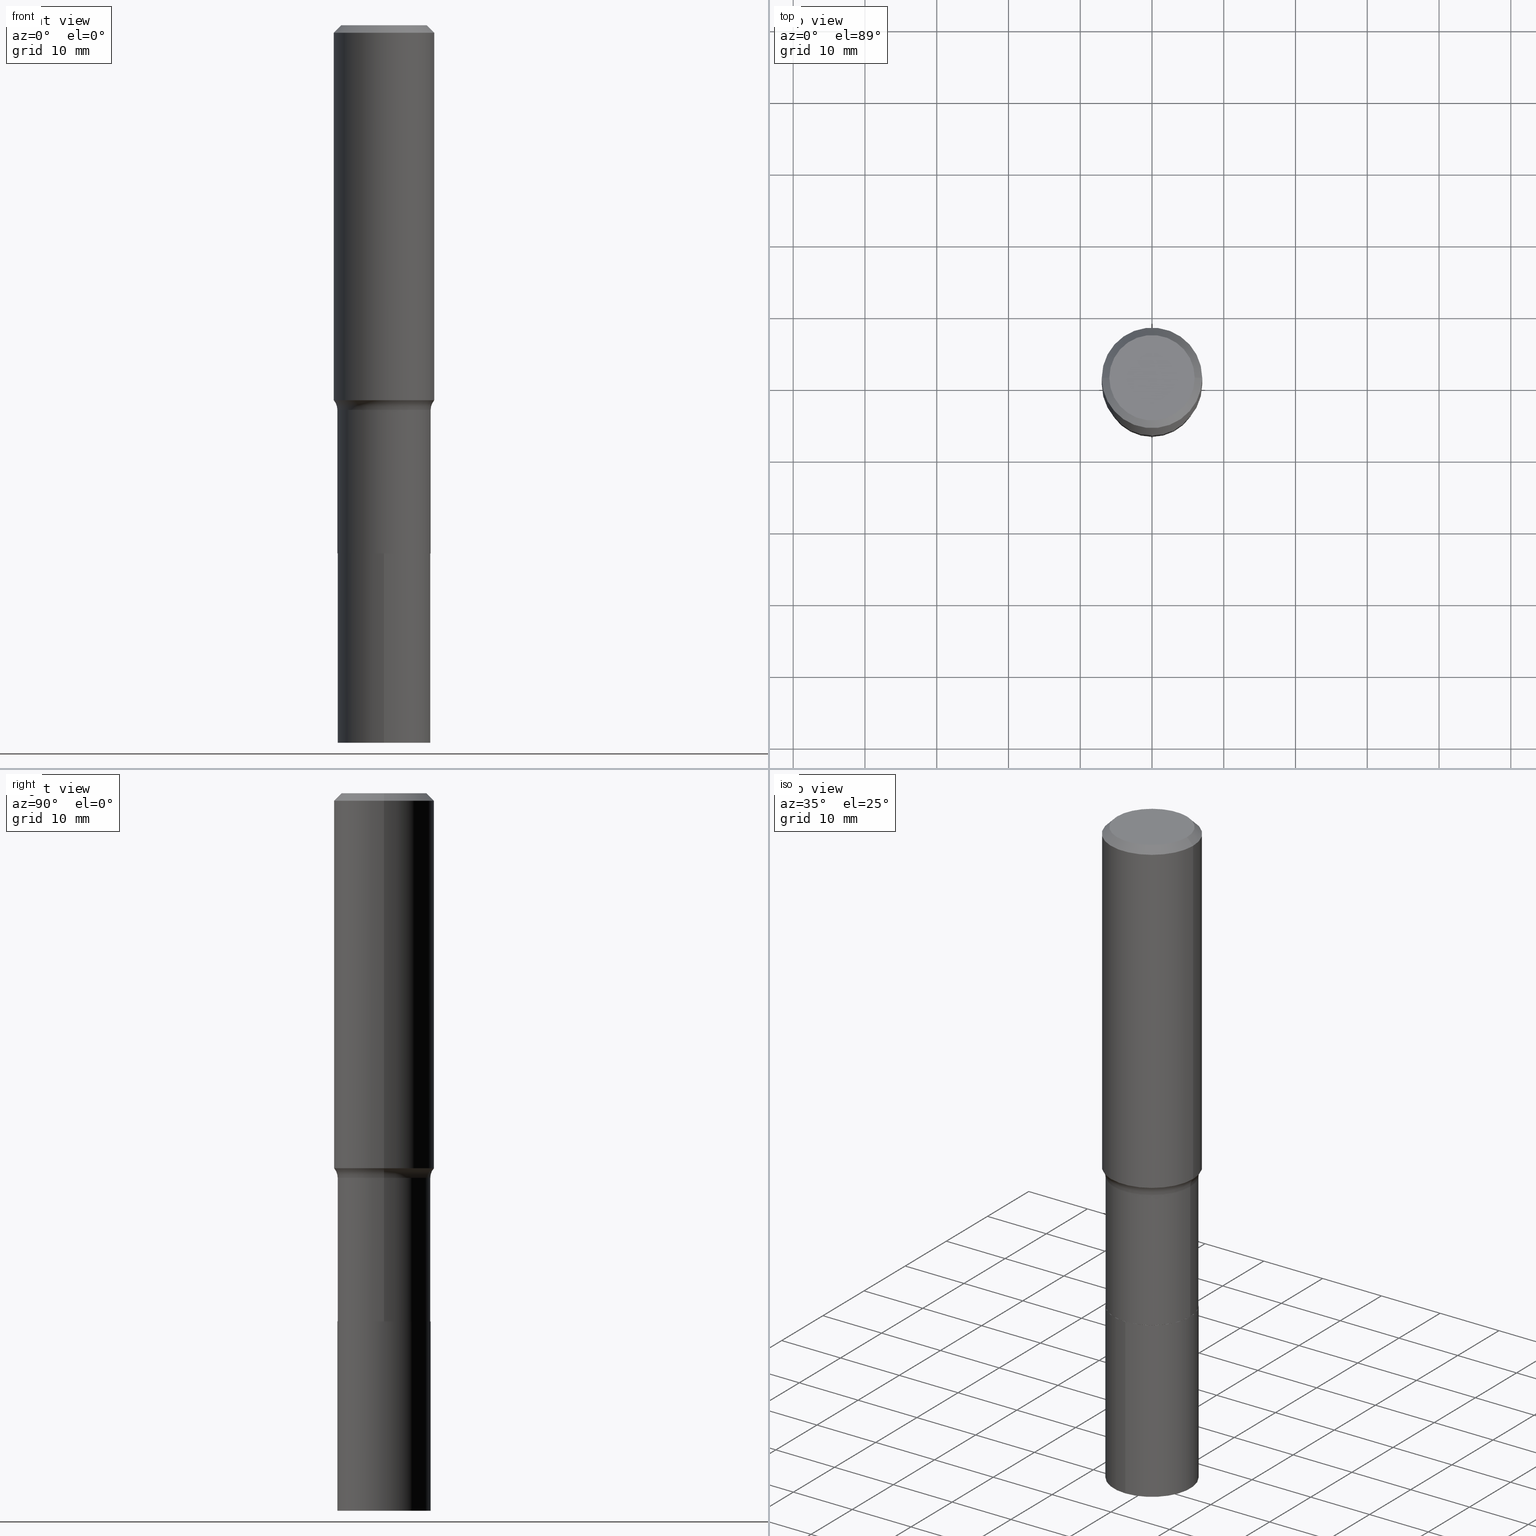
[diagram: canonical four-view strip — front | top / right | iso, engineering-drawing reading convention]
A machine part, canonical four-view strip (front | top / right | iso — engineering-drawing reading convention). The complete STEP part file that produces these views, byte-faithful:
ISO-10303-21;
HEADER;
FILE_DESCRIPTION (( 'STEP AP203' ),
    '1' );
FILE_NAME ('67170.STEP',
    '2024-04-19T16:07:38',
    ( '' ),
    ( '' ),
    'SwSTEP 2.0',
    'SolidWorks 2023',
    '' );
FILE_SCHEMA (( 'CONFIG_CONTROL_DESIGN' ));
ENDSEC;

DATA;
#1 = ORIENTED_EDGE ( 'NONE', *, *, #461, .F. ) ;
#2 = ORIENTED_EDGE ( 'NONE', *, *, #424, .T. ) ;
#3 = VERTEX_POINT ( 'NONE', #457 ) ;
#4 = VECTOR ( 'NONE', #52, 39.37007874015748143 ) ;
#5 = CIRCLE ( 'NONE', #159, 0.2559000000000000163 ) ;
#6 = DIRECTION ( 'NONE',  ( -2.445932488875048180E-29, 3.490817318840012660E-15, 1.000000000000000000 ) ) ;
#7 = ORIENTED_EDGE ( 'NONE', *, *, #109, .T. ) ;
#8 = DIRECTION ( 'NONE',  ( 1.000000000000000000, -6.982962677686266711E-15, 4.876176775795935232E-29 ) ) ;
#9 = ADVANCED_FACE ( 'NONE', ( #175 ), #105, .F. ) ;
#10 = DIRECTION ( 'NONE',  ( -1.000000000000000000, 6.982962677686265922E-15, -4.876176775795935793E-29 ) ) ;
#11 = ORIENTED_EDGE ( 'NONE', *, *, #394, .F. ) ;
#12 = DIRECTION ( 'NONE',  ( -2.445468806185136877E-29, 3.491481338843145188E-15, 1.000000000000000000 ) ) ;
#13 = CARTESIAN_POINT ( 'NONE',  ( 7.086968600324527615E-29, -1.011831291996743858E-14, -2.898000000000000576 ) ) ;
#14 = CARTESIAN_POINT ( 'NONE',  ( -0.2756000000000000116, -1.705996447411659768E-15, -0.04134000000000027930 ) ) ;
#15 = DIRECTION ( 'NONE',  ( -2.438088387897960049E-29, 3.491481338843145188E-15, 1.000000000000000000 ) ) ;
#16 = VERTEX_POINT ( 'NONE', #28 ) ;
#17 = APPROVAL_ROLE ( '' ) ;
#18 = CARTESIAN_POINT ( 'NONE',  ( -0.2559000000000000719, -6.923866689452313634E-15, -2.897499999999999964 ) ) ;
#19 = FACE_OUTER_BOUND ( 'NONE', #454, .T. ) ;
#20 = CALENDAR_DATE ( 2024, 19, 4 ) ;
#21 = DIRECTION ( 'NONE',  ( 1.000000000000000000, -6.982962677686262766E-15, 0.000000000000000000 ) ) ;
#22 = AXIS2_PLACEMENT_3D ( 'NONE', #336, #15, #161 ) ;
#23 = APPLICATION_PROTOCOL_DEFINITION ( 'international standard', 'config_control_design', 1994, #234 ) ;
#24 = DIRECTION ( 'NONE',  ( 1.000000000000000000, -6.982962677686267499E-15, 0.000000000000000000 ) ) ;
#25 = CC_DESIGN_APPROVAL ( #153, ( #237 ) ) ;
#26 = CARTESIAN_POINT ( 'NONE',  ( 0.000000000000000000, 0.000000000000000000, 0.000000000000000000 ) ) ;
#27 = ORIENTED_EDGE ( 'NONE', *, *, #464, .T. ) ;
#28 = CARTESIAN_POINT ( 'NONE',  ( 0.2559000000000000719, -1.190350732851793045E-14, -2.897499999999999964 ) ) ;
#29 = EDGE_CURVE ( 'NONE', #298, #326, #403, .T. ) ;
#30 = CALENDAR_DATE ( 2024, 19, 4 ) ;
#31 = CIRCLE ( 'NONE', #224, 0.2559000000000000719 ) ;
#32 = EDGE_CURVE ( 'NONE', #217, #368, #142, .T. ) ;
#33 = DIRECTION ( 'NONE',  ( -2.445468806185136597E-29, 3.491481338843145583E-15, 1.000000000000000000 ) ) ;
#34 = CC_DESIGN_PERSON_AND_ORGANIZATION_ASSIGNMENT ( #167, #133, ( #404 ) ) ;
#35 = ORIENTED_EDGE ( 'NONE', *, *, #92, .F. ) ;
#36 = APPROVAL_DATE_TIME ( #392, #465 ) ;
#37 = CIRCLE ( 'NONE', #320, 0.2554000000000000159 ) ;
#38 = AXIS2_PLACEMENT_3D ( 'NONE', #262, #42, #124 ) ;
#39 = DIRECTION ( 'NONE',  ( -2.445468806185136877E-29, 3.491481338843145188E-15, 1.000000000000000000 ) ) ;
#40 = ORIENTED_EDGE ( 'NONE', *, *, #290, .F. ) ;
#41 = EDGE_LOOP ( 'NONE', ( #56, #291, #27, #205 ) ) ;
#42 = DIRECTION ( 'NONE',  ( 2.445932488875047619E-29, -3.490817318840012660E-15, -1.000000000000000000 ) ) ;
#43 = ORIENTED_EDGE ( 'NONE', *, *, #199, .F. ) ;
#44 = APPROVAL_PERSON_ORGANIZATION ( #315, #153, #17 ) ;
#45 = ADVANCED_FACE ( 'NONE', ( #444 ), #297, .T. ) ;
#46 = DIRECTION ( 'NONE',  ( -2.445468806185136877E-29, 3.491481338843145188E-15, 1.000000000000000000 ) ) ;
#47 = CARTESIAN_POINT ( 'NONE',  ( -1.786940149219819499E-15, -0.2559000000000137831, -3.936999999999999389 ) ) ;
#48 = CARTESIAN_POINT ( 'NONE',  ( 7.086968600324526494E-29, -1.011831291996743700E-14, -2.898000000000000131 ) ) ;
#49 = CIRCLE ( 'NONE', #346, 0.2554000000000000159 ) ;
#50 = APPROVAL_STATUS ( 'not_yet_approved' ) ;
#51 = DIRECTION ( 'NONE',  ( 1.000000000000000000, -6.982962677686262766E-15, 0.000000000000000000 ) ) ;
#52 = DIRECTION ( 'NONE',  ( -2.445468806185136877E-29, 3.491481338843145188E-15, 1.000000000000000000 ) ) ;
#53 = ORIENTED_EDGE ( 'NONE', *, *, #286, .T. ) ;
#54 = PERSON_AND_ORGANIZATION_ROLE ( 'creator' ) ;
#55 = DIRECTION ( 'NONE',  ( 7.105427357601001859E-15, 1.000000000000000000, -3.491481338843145583E-15 ) ) ;
#56 = ORIENTED_EDGE ( 'NONE', *, *, #412, .F. ) ;
#57 = ADVANCED_FACE ( 'NONE', ( #86 ), #186, .T. ) ;
#58 = PERSON_AND_ORGANIZATION ( #442, #249 ) ;
#59 = LINE ( 'NONE', #456, #254 ) ;
#60 = CLOSED_SHELL ( 'NONE', ( #163, #314, #45, #173, #247, #206, #261, #74, #57, #71, #168, #296 ) ) ;
#61 = DIRECTION ( 'NONE',  ( 1.000000000000000000, -6.982962677686266711E-15, 0.000000000000000000 ) ) ;
#62 = CIRCLE ( 'NONE', #107, 0.2756000000000002892 ) ;
#63 = PERSON_AND_ORGANIZATION_ROLE ( 'design_supplier' ) ;
#64 = CARTESIAN_POINT ( 'NONE',  ( 5.031862883494752694E-29, -7.184166615785218698E-15, -2.057627098234926510 ) ) ;
#65 = CC_DESIGN_PERSON_AND_ORGANIZATION_ASSIGNMENT ( #279, #54, ( #146 ) ) ;
#66 = EDGE_LOOP ( 'NONE', ( #257, #417, #53, #1 ) ) ;
#67 = CALENDAR_DATE ( 2024, 19, 4 ) ;
#68 = ORIENTED_EDGE ( 'NONE', *, *, #384, .T. ) ;
#69 = AXIS2_PLACEMENT_3D ( 'NONE', #82, #259, #8 ) ;
#70 = CC_DESIGN_APPROVAL ( #465, ( #404 ) ) ;
#71 = ADVANCED_FACE ( 'NONE', ( #202 ), #401, .F. ) ;
#72 = ORIENTED_EDGE ( 'NONE', *, *, #424, .F. ) ;
#73 = FACE_OUTER_BOUND ( 'NONE', #308, .T. ) ;
#74 = ADVANCED_FACE ( 'NONE', ( #232 ), #187, .T. ) ;
#75 = FACE_OUTER_BOUND ( 'NONE', #273, .T. ) ;
#76 = LINE ( 'NONE', #269, #4 ) ;
#77 = AXIS2_PLACEMENT_3D ( 'NONE', #333, #81, #266 ) ;
#78 = LOCAL_TIME ( 12, 7, 38.00000000000000000, #140 ) ;
#79 = CC_DESIGN_DATE_AND_TIME_ASSIGNMENT ( #176, #245, ( #404 ) ) ;
#80 = FACE_OUTER_BOUND ( 'NONE', #148, .T. ) ;
#81 = DIRECTION ( 'NONE',  ( -2.445468806185136597E-29, 3.491481338843145583E-15, 1.000000000000000000 ) ) ;
#82 = CARTESIAN_POINT ( 'NONE',  ( 0.000000000000000000, 0.000000000000000000, 0.000000000000000000 ) ) ;
#83 = DIRECTION ( 'NONE',  ( 1.000000000000000000, -6.982962677686262766E-15, 0.000000000000000000 ) ) ;
#84 = CARTESIAN_POINT ( 'NONE',  ( 0.000000000000000000, 0.000000000000000000, 0.000000000000000000 ) ) ;
#85 = DIRECTION ( 'NONE',  ( -1.000000000000000000, 6.982962677686267499E-15, 0.000000000000000000 ) ) ;
#86 = FACE_OUTER_BOUND ( 'NONE', #396, .T. ) ;
#87 = ORIENTED_EDGE ( 'NONE', *, *, #118, .T. ) ;
#88 = VECTOR ( 'NONE', #12, 39.37007874015748143 ) ;
#89 = DATE_AND_TIME ( #20, #78 ) ;
#90 = CARTESIAN_POINT ( 'NONE',  ( 7.085745865921433693E-29, -1.011656717929801471E-14, -2.897499999999999964 ) ) ;
#91 = CARTESIAN_POINT ( 'NONE',  ( 0.000000000000000000, 0.000000000000000000, 0.000000000000000000 ) ) ;
#92 = EDGE_CURVE ( 'NONE', #402, #203, #409, .T. ) ;
#93 = UNCERTAINTY_MEASURE_WITH_UNIT (LENGTH_MEASURE( 1.000000000000000082E-05 ), #418, 'distance_accuracy_value', 'NONE');
#94 = VERTEX_POINT ( 'NONE', #227 ) ;
#95 = CARTESIAN_POINT ( 'NONE',  ( 5.160428274811875519E-29, -7.367723921226805540E-15, -2.110199999999999854 ) ) ;
#96 = CARTESIAN_POINT ( 'NONE',  ( 3.758036747716897919E-29, -2.215181240308971030E-14, -3.937000000000000277 ) ) ;
#97 = EDGE_CURVE ( 'NONE', #432, #3, #438, .T. ) ;
#98 = APPROVAL_ROLE ( '' ) ;
#99 = DESIGN_CONTEXT ( 'detailed design', #234, 'design' ) ;
#100 = ORIENTED_EDGE ( 'NONE', *, *, #97, .T. ) ;
#101 = LENGTH_MEASURE_WITH_UNIT ( LENGTH_MEASURE( 0.02539999999999999897 ), #258 );
#102 = DIRECTION ( 'NONE',  ( -6.982962677686266711E-15, -1.000000000000000000, 4.270180529369696392E-15 ) ) ;
#103 = AXIS2_PLACEMENT_3D ( 'NONE', #134, #421, #102 ) ;
#104 = DIRECTION ( 'NONE',  ( -6.982962677686266711E-15, -1.000000000000000000, 3.491481338843145583E-15 ) ) ;
#105 = PLANE ( 'NONE',  #390 ) ;
#106 = AXIS2_PLACEMENT_3D ( 'NONE', #264, #123, #83 ) ;
#107 = AXIS2_PLACEMENT_3D ( 'NONE', #388, #354, #415 ) ;
#108 = PRODUCT_DEFINITION_SHAPE ( 'NONE', 'NONE',  #237 ) ;
#109 = EDGE_CURVE ( 'NONE', #326, #191, #76, .T. ) ;
#110 = ORIENTED_EDGE ( 'NONE', *, *, #290, .T. ) ;
#111 = ORIENTED_EDGE ( 'NONE', *, *, #464, .F. ) ;
#112 = VECTOR ( 'NONE', #177, 39.37007874015748143 ) ;
#113 =( GEOMETRIC_REPRESENTATION_CONTEXT ( 3 ) GLOBAL_UNCERTAINTY_ASSIGNED_CONTEXT ( ( #93 ) ) GLOBAL_UNIT_ASSIGNED_CONTEXT ( ( #418, #127, #267 ) ) REPRESENTATION_CONTEXT ( 'NONE', 'WORKASPACE' ) );
#114 = CARTESIAN_POINT ( 'NONE',  ( 0.2558999999999999608, -9.154664070446721280E-15, -2.110199999999999854 ) ) ;
#115 = ADVANCED_FACE ( 'NONE', ( #338 ), #371, .T. ) ;
#116 = VERTEX_POINT ( 'NONE', #47 ) ;
#117 = DIRECTION ( 'NONE',  ( 2.445468806185136597E-29, -3.491481338843145583E-15, -1.000000000000000000 ) ) ;
#118 = EDGE_CURVE ( 'NONE', #3, #162, #303, .T. ) ;
#119 = DIRECTION ( 'NONE',  ( 1.000000000000000000, -6.982962677686262766E-15, 0.000000000000000000 ) ) ;
#120 = FACE_OUTER_BOUND ( 'NONE', #331, .T. ) ;
#121 = CC_DESIGN_SECURITY_CLASSIFICATION ( #404, ( #146 ) ) ;
#122 = CARTESIAN_POINT ( 'NONE',  ( 1.010956804476942398E-30, -1.443378385477766056E-16, -0.04134000000000027930 ) ) ;
#123 = DIRECTION ( 'NONE',  ( -2.445468806185136597E-29, 3.491481338843145583E-15, 1.000000000000000000 ) ) ;
#124 = DIRECTION ( 'NONE',  ( 6.982962677686265922E-15, 1.000000000000000000, -3.490817318840012660E-15 ) ) ;
#125 = DIRECTION ( 'NONE',  ( 2.445468806185136597E-29, -3.491481338843145583E-15, -1.000000000000000000 ) ) ;
#126 = ORIENTED_EDGE ( 'NONE', *, *, #426, .T. ) ;
#127 =( NAMED_UNIT ( * ) PLANE_ANGLE_UNIT ( ) SI_UNIT ( $, .RADIAN. ) );
#128 = CC_DESIGN_PERSON_AND_ORGANIZATION_ASSIGNMENT ( #351, #385, ( #170 ) ) ;
#129 = CARTESIAN_POINT ( 'NONE',  ( 1.818278860810179717E-15, 0.2558999999999862496, -3.937000000000001609 ) ) ;
#130 = FACE_OUTER_BOUND ( 'NONE', #271, .T. ) ;
#131 = CLOSED_SHELL ( 'NONE', ( #115, #9, #453, #309 ) ) ;
#132 = AXIS2_PLACEMENT_3D ( 'NONE', #241, #278, #61 ) ;
#133 = PERSON_AND_ORGANIZATION_ROLE ( 'classification_officer' ) ;
#134 = CARTESIAN_POINT ( 'NONE',  ( 7.086968600324526494E-29, -1.011831291996743700E-14, -2.898000000000000131 ) ) ;
#135 = CARTESIAN_POINT ( 'NONE',  ( 0.2342600000000000238, -1.821115673845785155E-15, 4.101342130356573868E-18 ) ) ;
#136 = APPROVAL_DATE_TIME ( #451, #153 ) ;
#137 = DIRECTION ( 'NONE',  ( 1.000000000000000000, -6.982962677686268288E-15, 0.000000000000000000 ) ) ;
#138 = DIRECTION ( 'NONE',  ( -2.445468806185136597E-29, 3.491481338843145583E-15, 1.000000000000000000 ) ) ;
#139 = DIRECTION ( 'NONE',  ( -2.445932488875047619E-29, 3.490817318840012660E-15, 1.000000000000000000 ) ) ;
#140 = COORDINATED_UNIVERSAL_TIME_OFFSET ( 5, 0, .BEHIND. ) ;
#141 = DIRECTION ( 'NONE',  ( -2.445932488875048180E-29, 3.490817318840012660E-15, 1.000000000000000000 ) ) ;
#142 = LINE ( 'NONE', #353, #149 ) ;
#143 = CARTESIAN_POINT ( 'NONE',  ( -0.2554000000000000159, -8.300937545662030209E-15, -2.898000000000000576 ) ) ;
#144 = ORIENTED_EDGE ( 'NONE', *, *, #437, .F. ) ;
#145 = EDGE_CURVE ( 'NONE', #94, #395, #49, .T. ) ;
#146 = PRODUCT_DEFINITION_FORMATION_WITH_SPECIFIED_SOURCE ( 'ANY', '', #170, .NOT_KNOWN. ) ;
#147 = ORIENTED_EDGE ( 'NONE', *, *, #199, .T. ) ;
#148 = EDGE_LOOP ( 'NONE', ( #110, #87 ) ) ;
#149 = VECTOR ( 'NONE', #39, 39.37007874015748143 ) ;
#150 = AXIS2_PLACEMENT_3D ( 'NONE', #90, #310, #137 ) ;
#151 = ORIENTED_EDGE ( 'NONE', *, *, #181, .F. ) ;
#152 = DIRECTION ( 'NONE',  ( 0.7071067811860646257, -2.468850131077198884E-15, 0.7071067811870304087 ) ) ;
#153 = APPROVAL ( #50, 'UNSPECIFIED' ) ;
#154 = CARTESIAN_POINT ( 'NONE',  ( 9.628292456265703180E-29, -1.374527211424221057E-14, -3.937000000000000721 ) ) ;
#155 = CARTESIAN_POINT ( 'NONE',  ( 7.086968600324526494E-29, -1.011831291996743700E-14, -2.898000000000000131 ) ) ;
#156 = EDGE_LOOP ( 'NONE', ( #68, #100, #40, #221 ) ) ;
#157 = DIRECTION ( 'NONE',  ( -2.445932488875048180E-29, 3.490817318840012660E-15, 1.000000000000000000 ) ) ;
#158 = DIRECTION ( 'NONE',  ( -2.445468806185136597E-29, 3.491481338843145583E-15, 1.000000000000000000 ) ) ;
#159 = AXIS2_PLACEMENT_3D ( 'NONE', #222, #443, #268 ) ;
#160 = DIRECTION ( 'NONE',  ( 1.000000000000000000, -6.982962677686266711E-15, 4.883557194083113462E-29 ) ) ;
#161 = DIRECTION ( 'NONE',  ( 1.000000000000000000, -6.982962677686265922E-15, 4.876176775795935793E-29 ) ) ;
#162 = VERTEX_POINT ( 'NONE', #190 ) ;
#163 = ADVANCED_FACE ( 'NONE', ( #120 ), #183, .T. ) ;
#164 = DIRECTION ( 'NONE',  ( -1.000000000000000000, 6.982962677686267499E-15, 0.000000000000000000 ) ) ;
#165 = EDGE_LOOP ( 'NONE', ( #184, #364, #238, #383 ) ) ;
#166 = ORIENTED_EDGE ( 'NONE', *, *, #437, .T. ) ;
#167 = PERSON_AND_ORGANIZATION ( #442, #249 ) ;
#168 = ADVANCED_FACE ( 'NONE', ( #19 ), #328, .F. ) ;
#169 = CARTESIAN_POINT ( 'NONE',  ( 0.2756000000000000116, -2.035091086733610886E-15, -0.04134000000000027930 ) ) ;
#170 = PRODUCT ( '67170', '67170', '', ( #239 ) ) ;
#171 = CIRCLE ( 'NONE', #220, 0.2558999999999999608 ) ;
#172 = CARTESIAN_POINT ( 'NONE',  ( 7.085745865921433693E-29, -1.011656717929801471E-14, -2.897499999999999964 ) ) ;
#173 = ADVANCED_FACE ( 'NONE', ( #130 ), #287, .F. ) ;
#174 = ORIENTED_EDGE ( 'NONE', *, *, #286, .F. ) ;
#175 = FACE_OUTER_BOUND ( 'NONE', #365, .T. ) ;
#176 = DATE_AND_TIME ( #67, #209 ) ;
#177 = DIRECTION ( 'NONE',  ( -0.7071067811860646257, 7.493145998868609200E-15, 0.7071067811870304087 ) ) ;
#178 = COORDINATED_UNIVERSAL_TIME_OFFSET ( 5, 0, .BEHIND. ) ;
#179 = APPLICATION_CONTEXT ( 'configuration controlled 3d designs of mechanical parts and assemblies' ) ;
#180 = COORDINATED_UNIVERSAL_TIME_OFFSET ( 5, 0, .BEHIND. ) ;
#181 = EDGE_CURVE ( 'NONE', #402, #265, #59, .T. ) ;
#182 = EDGE_LOOP ( 'NONE', ( #251, #196, #7, #467 ) ) ;
#183 = CONICAL_SURFACE ( 'NONE', #106, 0.2554000000000000159, 0.7853981633967653808 ) ;
#184 = ORIENTED_EDGE ( 'NONE', *, *, #394, .T. ) ;
#185 = ORIENTED_EDGE ( 'NONE', *, *, #92, .T. ) ;
#186 = CONICAL_SURFACE ( 'NONE', #450, 0.2756000000000000116, 0.7853981633974449483 ) ;
#187 = CYLINDRICAL_SURFACE ( 'NONE', #77, 0.2756000000000001227 ) ;
#188 = ORIENTED_EDGE ( 'NONE', *, *, #194, .T. ) ;
#189 = CARTESIAN_POINT ( 'NONE',  ( -0.2756000000000001227, 1.958255779754836984E-15, -1.355658510874252567E-29 ) ) ;
#190 = CARTESIAN_POINT ( 'NONE',  ( -1.786940149219844742E-15, -0.2559000000000101194, -2.897999999999998799 ) ) ;
#191 = VERTEX_POINT ( 'NONE', #382 ) ;
#192 = ORIENTED_EDGE ( 'NONE', *, *, #416, .T. ) ;
#193 = DIRECTION ( 'NONE',  ( -2.445468806185136597E-29, 3.491481338843145583E-15, 1.000000000000000000 ) ) ;
#194 = EDGE_CURVE ( 'NONE', #326, #255, #466, .T. ) ;
#195 = DIRECTION ( 'NONE',  ( -2.445468806185136597E-29, 3.491481338843145583E-15, 1.000000000000000000 ) ) ;
#196 = ORIENTED_EDGE ( 'NONE', *, *, #29, .T. ) ;
#197 = CARTESIAN_POINT ( 'NONE',  ( 5.160428274811875519E-29, -7.367723921226805540E-15, -2.110199999999999854 ) ) ;
#198 = DIRECTION ( 'NONE',  ( 1.000000000000000000, -6.982962677686267499E-15, 4.876176775795935793E-29 ) ) ;
#199 = EDGE_CURVE ( 'NONE', #203, #402, #361, .T. ) ;
#200 = AXIS2_PLACEMENT_3D ( 'NONE', #197, #405, #160 ) ;
#201 = CARTESIAN_POINT ( 'NONE',  ( 0.2756000000000002892, -9.108671129755555229E-15, -2.057627098234926510 ) ) ;
#202 = FACE_OUTER_BOUND ( 'NONE', #357, .T. ) ;
#203 = VERTEX_POINT ( 'NONE', #135 ) ;
#204 = LINE ( 'NONE', #283, #348 ) ;
#205 = ORIENTED_EDGE ( 'NONE', *, *, #379, .F. ) ;
#206 = ADVANCED_FACE ( 'NONE', ( #207 ), #347, .T. ) ;
#207 = FACE_OUTER_BOUND ( 'NONE', #66, .T. ) ;
#208 = AXIS2_PLACEMENT_3D ( 'NONE', #285, #427, #419 ) ;
#209 = LOCAL_TIME ( 12, 7, 38.00000000000000000, #178 ) ;
#210 = FACE_OUTER_BOUND ( 'NONE', #339, .T. ) ;
#211 = CARTESIAN_POINT ( 'NONE',  ( -1.002970424325033577E-46, 1.431975951230896486E-32, 4.101342130344485961E-18 ) ) ;
#212 = DATE_TIME_ROLE ( 'creation_date' ) ;
#213 = CARTESIAN_POINT ( 'NONE',  ( -0.3358999999999999764, -4.981010871808628395E-15, -2.110199999999999854 ) ) ;
#214 = EDGE_CURVE ( 'NONE', #395, #94, #37, .T. ) ;
#215 = DIRECTION ( 'NONE',  ( 1.000000000000000000, -6.982962677686265922E-15, 0.000000000000000000 ) ) ;
#216 = CIRCLE ( 'NONE', #356, 0.2756000000000000116 ) ;
#217 = VERTEX_POINT ( 'NONE', #18 ) ;
#218 = PRODUCT_RELATED_PRODUCT_CATEGORY ( 'detail', '', ( #170 ) ) ;
#219 = ORIENTED_EDGE ( 'NONE', *, *, #97, .F. ) ;
#220 = AXIS2_PLACEMENT_3D ( 'NONE', #95, #33, #246 ) ;
#221 = ORIENTED_EDGE ( 'NONE', *, *, #374, .F. ) ;
#222 = CARTESIAN_POINT ( 'NONE',  ( 7.086968600324526494E-29, -1.011831291996743700E-14, -2.898000000000000131 ) ) ;
#223 = LINE ( 'NONE', #189, #321 ) ;
#224 = AXIS2_PLACEMENT_3D ( 'NONE', #172, #316, #318 ) ;
#225 = DIRECTION ( 'NONE',  ( -2.445468806185136597E-29, 3.491481338843145583E-15, 1.000000000000000000 ) ) ;
#226 = CYLINDRICAL_SURFACE ( 'NONE', #69, 0.2559000000000000163 ) ;
#227 = CARTESIAN_POINT ( 'NONE',  ( 0.2554000000000000159, -1.190176158784851131E-14, -2.898000000000000576 ) ) ;
#228 = DIRECTION ( 'NONE',  ( -2.445932488875048180E-29, 3.490817318840012660E-15, 1.000000000000000000 ) ) ;
#229 = DIRECTION ( 'NONE',  ( 1.000000000000000000, 0.000000000000000000, 0.000000000000000000 ) ) ;
#230 = DIRECTION ( 'NONE',  ( -2.445468806185136597E-29, 3.491481338843145583E-15, 1.000000000000000000 ) ) ;
#231 = VECTOR ( 'NONE', #157, 39.37007874015748143 ) ;
#232 = FACE_OUTER_BOUND ( 'NONE', #182, .T. ) ;
#233 = AXIS2_PLACEMENT_3D ( 'NONE', #436, #117, #85 ) ;
#234 = APPLICATION_CONTEXT ( 'configuration controlled 3d designs of mechanical parts and assemblies' ) ;
#235 = CARTESIAN_POINT ( 'NONE',  ( 9.628292456265703180E-29, -1.374527211424221057E-14, -3.937000000000000721 ) ) ;
#236 = DIRECTION ( 'NONE',  ( -0.7071067811865451302, 2.468850131082231817E-15, -0.7071067811865499042 ) ) ;
#237 = PRODUCT_DEFINITION ( 'UNKNOWN', '', #146, #99 ) ;
#238 = ORIENTED_EDGE ( 'NONE', *, *, #429, .F. ) ;
#239 = MECHANICAL_CONTEXT ( 'NONE', #179, 'mechanical' ) ;
#240 = CARTESIAN_POINT ( 'NONE',  ( -0.2342600000000000238, 1.707997756148671759E-15, 4.101342130332794026E-18 ) ) ;
#241 = CARTESIAN_POINT ( 'NONE',  ( 5.160428274811875519E-29, -7.367723921226805540E-15, -2.110199999999999854 ) ) ;
#242 = AXIS2_PLACEMENT_3D ( 'NONE', #235, #141, #306 ) ;
#243 = DIRECTION ( 'NONE',  ( -1.000000000000000000, 7.105427357601001859E-15, 0.000000000000000000 ) ) ;
#244 = DIRECTION ( 'NONE',  ( -6.982962677686265922E-15, -1.000000000000000000, 3.490817318840012660E-15 ) ) ;
#245 = DATE_TIME_ROLE ( 'classification_date' ) ;
#246 = DIRECTION ( 'NONE',  ( 1.000000000000000000, -6.982962677686266711E-15, 0.000000000000000000 ) ) ;
#247 = ADVANCED_FACE ( 'NONE', ( #73 ), #226, .T. ) ;
#248 = AXIS2_PLACEMENT_3D ( 'NONE', #260, #367, #10 ) ;
#249 = ORGANIZATION ( 'UNSPECIFIED', 'UNSPECIFIED', '' ) ;
#250 = ORIENTED_EDGE ( 'NONE', *, *, #145, .T. ) ;
#251 = ORIENTED_EDGE ( 'NONE', *, *, #363, .F. ) ;
#252 = SHAPE_DEFINITION_REPRESENTATION ( #108, #342 ) ;
#253 = ORIENTED_EDGE ( 'NONE', *, *, #29, .F. ) ;
#254 = VECTOR ( 'NONE', #236, 39.37007874015748143 ) ;
#255 = VERTEX_POINT ( 'NONE', #114 ) ;
#256 = DIRECTION ( 'NONE',  ( -6.982962677686266711E-15, -1.000000000000000000, 4.270180529369696392E-15 ) ) ;
#257 = ORIENTED_EDGE ( 'NONE', *, *, #32, .F. ) ;
#258 =( LENGTH_UNIT ( ) NAMED_UNIT ( * ) SI_UNIT ( $, .METRE. ) );
#259 = DIRECTION ( 'NONE',  ( -2.445468806185136597E-29, 3.491481338843145583E-15, 1.000000000000000000 ) ) ;
#260 = CARTESIAN_POINT ( 'NONE',  ( -5.014852121625167883E-47, 7.159879756154482429E-33, 2.050671065172242981E-18 ) ) ;
#261 = ADVANCED_FACE ( 'NONE', ( #75 ), #280, .F. ) ;
#262 = CARTESIAN_POINT ( 'NONE',  ( 7.086968600324526494E-29, -1.011831291996743700E-14, -2.898000000000000131 ) ) ;
#263 = AXIS2_PLACEMENT_3D ( 'NONE', #343, #104, #21 ) ;
#264 = CARTESIAN_POINT ( 'NONE',  ( 7.086968600324527615E-29, -1.011831291996743858E-14, -2.898000000000000576 ) ) ;
#265 = VERTEX_POINT ( 'NONE', #14 ) ;
#266 = DIRECTION ( 'NONE',  ( 1.000000000000000000, -6.982962677686267499E-15, 4.876176775795935793E-29 ) ) ;
#267 =( NAMED_UNIT ( * ) SI_UNIT ( $, .STERADIAN. ) SOLID_ANGLE_UNIT ( ) );
#268 = DIRECTION ( 'NONE',  ( -6.982962677686266711E-15, -1.000000000000000000, 4.270180529369696392E-15 ) ) ;
#269 = CARTESIAN_POINT ( 'NONE',  ( 0.2756000000000001227, -1.924504513970336137E-15, 1.343874319409360548E-29 ) ) ;
#270 = DATE_AND_TIME ( #455, #288 ) ;
#271 = EDGE_LOOP ( 'NONE', ( #253, #192, #445, #359 ) ) ;
#272 = VECTOR ( 'NONE', #452, 39.37007874015748143 ) ;
#273 = EDGE_LOOP ( 'NONE', ( #431, #11, #188, #126 ) ) ;
#274 = DIRECTION ( 'NONE',  ( -2.445932488875048180E-29, 3.490817318840012660E-15, 1.000000000000000000 ) ) ;
#275 = APPROVAL ( #410, 'UNSPECIFIED' ) ;
#276 = ORIENTED_EDGE ( 'NONE', *, *, #374, .T. ) ;
#277 = PERSON_AND_ORGANIZATION ( #442, #249 ) ;
#278 = DIRECTION ( 'NONE',  ( -2.445468806185136597E-29, 3.491481338843145583E-15, 1.000000000000000000 ) ) ;
#279 = PERSON_AND_ORGANIZATION ( #442, #249 ) ;
#280 = TOROIDAL_SURFACE ( 'NONE', #200, 0.3358999999999999764, 0.07999999999999996003 ) ;
#281 = APPROVAL_PERSON_ORGANIZATION ( #277, #275, #98 ) ;
#282 = EDGE_CURVE ( 'NONE', #432, #116, #319, .T. ) ;
#283 = CARTESIAN_POINT ( 'NONE',  ( -1.786940149219844742E-15, -0.2559000000000101194, -2.897999999999998799 ) ) ;
#284 = MANIFOLD_SOLID_BREP ( 'Body-Move/Copy2[2]', #60 ) ;
#285 = CARTESIAN_POINT ( 'NONE',  ( 5.160428274811875519E-29, -7.367723921226805540E-15, -2.110199999999999854 ) ) ;
#286 = EDGE_CURVE ( 'NONE', #16, #255, #300, .T. ) ;
#287 = TOROIDAL_SURFACE ( 'NONE', #208, 0.3358999999999999764, 0.07999999999999996003 ) ;
#288 = LOCAL_TIME ( 12, 7, 38.00000000000000000, #313 ) ;
#289 = ORIENTED_EDGE ( 'NONE', *, *, #412, .T. ) ;
#290 = EDGE_CURVE ( 'NONE', #162, #3, #5, .T. ) ;
#291 = ORIENTED_EDGE ( 'NONE', *, *, #214, .T. ) ;
#292 = EDGE_CURVE ( 'NONE', #265, #191, #216, .T. ) ;
#293 = CONICAL_SURFACE ( 'NONE', #233, 0.2756000000000000116, 0.7853981633974449483 ) ;
#294 = ORIENTED_EDGE ( 'NONE', *, *, #118, .F. ) ;
#295 = DIRECTION ( 'NONE',  ( 1.000000000000000000, -6.982962677686267499E-15, 0.000000000000000000 ) ) ;
#296 = ADVANCED_FACE ( 'NONE', ( #400 ), #327, .T. ) ;
#297 = CYLINDRICAL_SURFACE ( 'NONE', #433, 0.2756000000000001227 ) ;
#298 = VERTEX_POINT ( 'NONE', #366 ) ;
#299 = CARTESIAN_POINT ( 'NONE',  ( 0.2554000000000000159, -1.190176158784851131E-14, -2.898000000000000576 ) ) ;
#300 = LINE ( 'NONE', #332, #88 ) ;
#301 = CARTESIAN_POINT ( 'NONE',  ( -1.002970424325033577E-46, 1.431975951230896486E-32, 4.101342130344485961E-18 ) ) ;
#302 = CC_DESIGN_PERSON_AND_ORGANIZATION_ASSIGNMENT ( #58, #458, ( #237 ) ) ;
#303 = CIRCLE ( 'NONE', #460, 0.2559000000000000163 ) ;
#304 = CIRCLE ( 'NONE', #411, 0.07999999999999996003 ) ;
#305 = CARTESIAN_POINT ( 'NONE',  ( 1.010956804476942398E-30, -1.443378385477766056E-16, -0.04134000000000027930 ) ) ;
#306 = DIRECTION ( 'NONE',  ( -6.982962677686266711E-15, -1.000000000000000000, 4.270180529369696392E-15 ) ) ;
#307 = CARTESIAN_POINT ( 'NONE',  ( 1.818278860810167095E-15, 0.2558999999999899133, -2.898000000000001020 ) ) ;
#308 = EDGE_LOOP ( 'NONE', ( #2, #399, #337, #174 ) ) ;
#309 = ADVANCED_FACE ( 'NONE', ( #80 ), #447, .F. ) ;
#310 = DIRECTION ( 'NONE',  ( -2.445468806185136597E-29, 3.491481338843145583E-15, 1.000000000000000000 ) ) ;
#311 = DIRECTION ( 'NONE',  ( -2.445468806185136597E-29, 3.491481338843145583E-15, 1.000000000000000000 ) ) ;
#312 = CIRCLE ( 'NONE', #391, 0.2756000000000000116 ) ;
#313 = COORDINATED_UNIVERSAL_TIME_OFFSET ( 5, 0, .BEHIND. ) ;
#314 = ADVANCED_FACE ( 'NONE', ( #408 ), #293, .T. ) ;
#315 = PERSON_AND_ORGANIZATION ( #442, #249 ) ;
#316 = DIRECTION ( 'NONE',  ( -2.445468806185136597E-29, 3.491481338843145583E-15, 1.000000000000000000 ) ) ;
#317 = DIRECTION ( 'NONE',  ( -2.445468806185136597E-29, 3.491481338843145583E-15, 1.000000000000000000 ) ) ;
#318 = DIRECTION ( 'NONE',  ( 1.000000000000000000, -6.982962677686268288E-15, 0.000000000000000000 ) ) ;
#319 = CIRCLE ( 'NONE', #335, 0.2559000000000000163 ) ;
#320 = AXIS2_PLACEMENT_3D ( 'NONE', #373, #230, #51 ) ;
#321 = VECTOR ( 'NONE', #46, 39.37007874015748143 ) ;
#322 = AXIS2_PLACEMENT_3D ( 'NONE', #26, #138, #350 ) ;
#323 = CC_DESIGN_APPROVAL ( #275, ( #146 ) ) ;
#324 = ORIENTED_EDGE ( 'NONE', *, *, #292, .T. ) ;
#325 = ORIENTED_EDGE ( 'NONE', *, *, #181, .T. ) ;
#326 = VERTEX_POINT ( 'NONE', #201 ) ;
#327 = CONICAL_SURFACE ( 'NONE', #434, 0.2554000000000000159, 0.7853981633967653808 ) ;
#328 = PLANE ( 'NONE',  #22 ) ;
#329 = EDGE_LOOP ( 'NONE', ( #43, #166, #435, #151 ) ) ;
#330 = CARTESIAN_POINT ( 'NONE',  ( -0.2558999999999999608, -6.923866689452313634E-15, -2.110199999999999854 ) ) ;
#331 = EDGE_LOOP ( 'NONE', ( #250, #289, #72, #111 ) ) ;
#332 = CARTESIAN_POINT ( 'NONE',  ( 0.2559000000000000163, -1.786940149219915740E-15, 1.247813636926179898E-29 ) ) ;
#333 = CARTESIAN_POINT ( 'NONE',  ( 0.000000000000000000, 0.000000000000000000, 0.000000000000000000 ) ) ;
#334 = AXIS2_PLACEMENT_3D ( 'NONE', #64, #317, #215 ) ;
#335 = AXIS2_PLACEMENT_3D ( 'NONE', #154, #376, #256 ) ;
#336 = CARTESIAN_POINT ( 'NONE',  ( 2.757807621517928410E-29, -1.631791784215932322E-14, -2.898000000000000576 ) ) ;
#337 = ORIENTED_EDGE ( 'NONE', *, *, #426, .F. ) ;
#338 = FACE_OUTER_BOUND ( 'NONE', #156, .T. ) ;
#339 = EDGE_LOOP ( 'NONE', ( #219, #398, #276, #294 ) ) ;
#340 = SECURITY_CLASSIFICATION_LEVEL ( 'unclassified' ) ;
#341 = LINE ( 'NONE', #169, #272 ) ;
#342 = ADVANCED_BREP_SHAPE_REPRESENTATION ( '67170', ( #425, #284, #370 ), #113 ) ;
#343 = CARTESIAN_POINT ( 'NONE',  ( 0.3358999999999999764, -9.713301084661621354E-15, -2.110199999999999854 ) ) ;
#344 = DIRECTION ( 'NONE',  ( 0.000000000000000000, 0.000000000000000000, 1.000000000000000000 ) ) ;
#345 = CARTESIAN_POINT ( 'NONE',  ( 1.010956804476942398E-30, -1.443378385477766056E-16, -0.04134000000000027930 ) ) ;
#346 = AXIS2_PLACEMENT_3D ( 'NONE', #13, #195, #406 ) ;
#347 = CYLINDRICAL_SURFACE ( 'NONE', #322, 0.2559000000000000163 ) ;
#348 = VECTOR ( 'NONE', #274, 39.37007874015748143 ) ;
#349 = CARTESIAN_POINT ( 'NONE',  ( -0.2554000000000000159, -8.303586772836143777E-15, -2.898000000000000576 ) ) ;
#350 = DIRECTION ( 'NONE',  ( 1.000000000000000000, -6.982962677686266711E-15, 4.876176775795935232E-29 ) ) ;
#351 = PERSON_AND_ORGANIZATION ( #442, #249 ) ;
#352 = DIMENSIONAL_EXPONENTS ( 1.000000000000000000, 0.000000000000000000, 0.000000000000000000, 0.000000000000000000, 0.000000000000000000, 0.000000000000000000, 0.000000000000000000 ) ;
#353 = CARTESIAN_POINT ( 'NONE',  ( -0.2559000000000000163, 1.818278860810096492E-15, -1.258755489596230312E-29 ) ) ;
#354 = DIRECTION ( 'NONE',  ( -2.445468806185136597E-29, 3.491481338843145583E-15, 1.000000000000000000 ) ) ;
#355 = ORIENTED_EDGE ( 'NONE', *, *, #145, .F. ) ;
#356 = AXIS2_PLACEMENT_3D ( 'NONE', #122, #193, #295 ) ;
#357 = EDGE_LOOP ( 'NONE', ( #185, #147 ) ) ;
#358 = CC_DESIGN_DATE_AND_TIME_ASSIGNMENT ( #270, #212, ( #237 ) ) ;
#359 = ORIENTED_EDGE ( 'NONE', *, *, #194, .F. ) ;
#360 = APPROVAL_ROLE ( '' ) ;
#361 = CIRCLE ( 'NONE', #422, 0.2342600000000000238 ) ;
#362 = VECTOR ( 'NONE', #152, 39.37007874015748143 ) ;
#363 = EDGE_CURVE ( 'NONE', #298, #265, #223, .T. ) ;
#364 = ORIENTED_EDGE ( 'NONE', *, *, #363, .T. ) ;
#365 = EDGE_LOOP ( 'NONE', ( #407, #413 ) ) ;
#366 = CARTESIAN_POINT ( 'NONE',  ( -0.2756000000000002892, -5.225910836030380530E-15, -2.057627098234926510 ) ) ;
#367 = DIRECTION ( 'NONE',  ( 2.438088387897960049E-29, -3.491481338843145188E-15, -1.000000000000000000 ) ) ;
#368 = VERTEX_POINT ( 'NONE', #330 ) ;
#369 = CC_DESIGN_PERSON_AND_ORGANIZATION_ASSIGNMENT ( #420, #63, ( #146 ) ) ;
#370 = AXIS2_PLACEMENT_3D ( 'NONE', #84, #344, #229 ) ;
#371 = CYLINDRICAL_SURFACE ( 'NONE', #387, 0.2559000000000000163 ) ;
#372 = DIRECTION ( 'NONE',  ( -6.982962677686266711E-15, -1.000000000000000000, 4.270180529369696392E-15 ) ) ;
#373 = CARTESIAN_POINT ( 'NONE',  ( 7.086968600324527615E-29, -1.011831291996743858E-14, -2.898000000000000576 ) ) ;
#374 = EDGE_CURVE ( 'NONE', #116, #162, #204, .T. ) ;
#375 = DIRECTION ( 'NONE',  ( 1.000000000000000000, -6.982962677686267499E-15, 4.876157962347795834E-29 ) ) ;
#376 = DIRECTION ( 'NONE',  ( -2.445932488875048180E-29, 3.490817318840012660E-15, 1.000000000000000000 ) ) ;
#377 = CIRCLE ( 'NONE', #150, 0.2559000000000000719 ) ;
#378 = DIRECTION ( 'NONE',  ( -2.445468806185136597E-29, 3.491481338843145583E-15, 1.000000000000000000 ) ) ;
#379 = EDGE_CURVE ( 'NONE', #217, #16, #377, .T. ) ;
#380 = APPLICATION_PROTOCOL_DEFINITION ( 'international standard', 'config_control_design', 1994, #179 ) ;
#381 = LINE ( 'NONE', #349, #112 ) ;
#382 = CARTESIAN_POINT ( 'NONE',  ( 0.2756000000000000116, -2.068842352518111732E-15, -0.04134000000000027930 ) ) ;
#383 = ORIENTED_EDGE ( 'NONE', *, *, #109, .F. ) ;
#384 = EDGE_CURVE ( 'NONE', #116, #432, #397, .T. ) ;
#385 = PERSON_AND_ORGANIZATION_ROLE ( 'design_owner' ) ;
#386 = DIRECTION ( 'NONE',  ( 1.000000000000000000, -6.982962677686267499E-15, 4.876157962347795834E-29 ) ) ;
#387 = AXIS2_PLACEMENT_3D ( 'NONE', #48, #6, #372 ) ;
#388 = CARTESIAN_POINT ( 'NONE',  ( 5.031862883494752694E-29, -7.184166615785218698E-15, -2.057627098234926510 ) ) ;
#389 = APPROVAL_STATUS ( 'not_yet_approved' ) ;
#390 = AXIS2_PLACEMENT_3D ( 'NONE', #96, #139, #244 ) ;
#391 = AXIS2_PLACEMENT_3D ( 'NONE', #345, #449, #24 ) ;
#392 = DATE_AND_TIME ( #30, #441 ) ;
#393 = ORIENTED_EDGE ( 'NONE', *, *, #214, .F. ) ;
#394 = EDGE_CURVE ( 'NONE', #326, #298, #62, .T. ) ;
#395 = VERTEX_POINT ( 'NONE', #143 ) ;
#396 = EDGE_LOOP ( 'NONE', ( #144, #35, #325, #324 ) ) ;
#397 = CIRCLE ( 'NONE', #242, 0.2559000000000000163 ) ;
#398 = ORIENTED_EDGE ( 'NONE', *, *, #282, .T. ) ;
#399 = ORIENTED_EDGE ( 'NONE', *, *, #32, .T. ) ;
#400 = FACE_OUTER_BOUND ( 'NONE', #41, .T. ) ;
#401 = PLANE ( 'NONE',  #248 ) ;
#402 = VERTEX_POINT ( 'NONE', #240 ) ;
#403 = CIRCLE ( 'NONE', #334, 0.2756000000000002892 ) ;
#404 = SECURITY_CLASSIFICATION ( '', '', #340 ) ;
#405 = DIRECTION ( 'NONE',  ( -2.445468806185136597E-29, 3.491481338843145583E-15, 1.000000000000000000 ) ) ;
#406 = DIRECTION ( 'NONE',  ( 1.000000000000000000, -6.982962677686262766E-15, 0.000000000000000000 ) ) ;
#407 = ORIENTED_EDGE ( 'NONE', *, *, #384, .F. ) ;
#408 = FACE_OUTER_BOUND ( 'NONE', #329, .T. ) ;
#409 = CIRCLE ( 'NONE', #428, 0.2342600000000000238 ) ;
#410 = APPROVAL_STATUS ( 'not_yet_approved' ) ;
#411 = AXIS2_PLACEMENT_3D ( 'NONE', #213, #55, #243 ) ;
#412 = EDGE_CURVE ( 'NONE', #395, #217, #381, .T. ) ;
#413 = ORIENTED_EDGE ( 'NONE', *, *, #282, .F. ) ;
#414 = APPROVAL_DATE_TIME ( #89, #275 ) ;
#415 = DIRECTION ( 'NONE',  ( 1.000000000000000000, -6.982962677686265922E-15, 0.000000000000000000 ) ) ;
#416 = EDGE_CURVE ( 'NONE', #298, #368, #304, .T. ) ;
#417 = ORIENTED_EDGE ( 'NONE', *, *, #379, .T. ) ;
#418 =( CONVERSION_BASED_UNIT ( 'INCH', #101 ) LENGTH_UNIT ( ) NAMED_UNIT ( #352 ) );
#419 = DIRECTION ( 'NONE',  ( 1.000000000000000000, -6.982962677686266711E-15, 4.883557194083113462E-29 ) ) ;
#420 = PERSON_AND_ORGANIZATION ( #442, #249 ) ;
#421 = DIRECTION ( 'NONE',  ( -2.445932488875048180E-29, 3.490817318840012660E-15, 1.000000000000000000 ) ) ;
#422 = AXIS2_PLACEMENT_3D ( 'NONE', #211, #311, #386 ) ;
#423 = CIRCLE ( 'NONE', #132, 0.2558999999999999608 ) ;
#424 = EDGE_CURVE ( 'NONE', #16, #217, #31, .T. ) ;
#425 = MANIFOLD_SOLID_BREP ( 'Body-Move/Copy2[1]', #131 ) ;
#426 = EDGE_CURVE ( 'NONE', #255, #368, #423, .T. ) ;
#427 = DIRECTION ( 'NONE',  ( -2.445468806185136597E-29, 3.491481338843145583E-15, 1.000000000000000000 ) ) ;
#428 = AXIS2_PLACEMENT_3D ( 'NONE', #301, #378, #375 ) ;
#429 = EDGE_CURVE ( 'NONE', #191, #265, #312, .T. ) ;
#430 = LOCAL_TIME ( 12, 7, 38.00000000000000000, #446 ) ;
#431 = ORIENTED_EDGE ( 'NONE', *, *, #416, .F. ) ;
#432 = VERTEX_POINT ( 'NONE', #129 ) ;
#433 = AXIS2_PLACEMENT_3D ( 'NONE', #91, #225, #198 ) ;
#434 = AXIS2_PLACEMENT_3D ( 'NONE', #439, #158, #119 ) ;
#435 = ORIENTED_EDGE ( 'NONE', *, *, #429, .T. ) ;
#436 = CARTESIAN_POINT ( 'NONE',  ( 1.010956804476942398E-30, -1.443378385477766056E-16, -0.04134000000000027930 ) ) ;
#437 = EDGE_CURVE ( 'NONE', #203, #191, #341, .T. ) ;
#438 = LINE ( 'NONE', #307, #231 ) ;
#439 = CARTESIAN_POINT ( 'NONE',  ( 7.086968600324527615E-29, -1.011831291996743858E-14, -2.898000000000000576 ) ) ;
#440 = DIRECTION ( 'NONE',  ( -6.982962677686266711E-15, -1.000000000000000000, 4.270180529369696392E-15 ) ) ;
#441 = LOCAL_TIME ( 12, 7, 38.00000000000000000, #180 ) ;
#442 = PERSON ( 'UNSPECIFIED', 'UNSPECIFIED', 'UNSPECIFIED', ('UNSPECIFIED'), ('UNSPECIFIED'), ('UNSPECIFIED') ) ;
#443 = DIRECTION ( 'NONE',  ( -2.445932488875048180E-29, 3.490817318840012660E-15, 1.000000000000000000 ) ) ;
#444 = FACE_OUTER_BOUND ( 'NONE', #165, .T. ) ;
#445 = ORIENTED_EDGE ( 'NONE', *, *, #461, .T. ) ;
#446 = COORDINATED_UNIVERSAL_TIME_OFFSET ( 5, 0, .BEHIND. ) ;
#447 = PLANE ( 'NONE',  #38 ) ;
#448 = CALENDAR_DATE ( 2024, 19, 4 ) ;
#449 = DIRECTION ( 'NONE',  ( -2.445468806185136597E-29, 3.491481338843145583E-15, 1.000000000000000000 ) ) ;
#450 = AXIS2_PLACEMENT_3D ( 'NONE', #305, #125, #164 ) ;
#451 = DATE_AND_TIME ( #448, #430 ) ;
#452 = DIRECTION ( 'NONE',  ( 0.7071067811865451302, -7.319954787623248157E-15, -0.7071067811865499042 ) ) ;
#453 = ADVANCED_FACE ( 'NONE', ( #210 ), #459, .T. ) ;
#454 = EDGE_LOOP ( 'NONE', ( #355, #393 ) ) ;
#455 = CALENDAR_DATE ( 2024, 19, 4 ) ;
#456 = CARTESIAN_POINT ( 'NONE',  ( -0.2756000000000000116, 1.780166675422558965E-15, -0.04134000000000027930 ) ) ;
#457 = CARTESIAN_POINT ( 'NONE',  ( 1.818278860810192733E-15, 0.2558999999999899133, -2.898000000000001020 ) ) ;
#458 = PERSON_AND_ORGANIZATION_ROLE ( 'creator' ) ;
#459 = CYLINDRICAL_SURFACE ( 'NONE', #103, 0.2559000000000000163 ) ;
#460 = AXIS2_PLACEMENT_3D ( 'NONE', #155, #228, #440 ) ;
#461 = EDGE_CURVE ( 'NONE', #368, #255, #171, .T. ) ;
#462 = LINE ( 'NONE', #299, #362 ) ;
#463 = PERSON_AND_ORGANIZATION ( #442, #249 ) ;
#464 = EDGE_CURVE ( 'NONE', #94, #16, #462, .T. ) ;
#465 = APPROVAL ( #389, 'UNSPECIFIED' ) ;
#466 = CIRCLE ( 'NONE', #263, 0.07999999999999996003 ) ;
#467 = ORIENTED_EDGE ( 'NONE', *, *, #292, .F. ) ;
#468 = APPROVAL_PERSON_ORGANIZATION ( #463, #465, #360 ) ;
ENDSEC;
END-ISO-10303-21;
